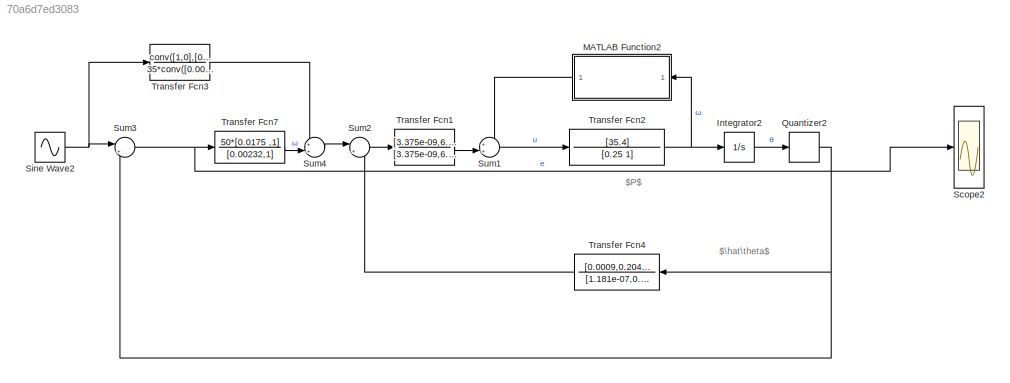
MODEL slx_70a6d7ed3083
KIND model
CONFIG AbsTol = auto
CONFIG EnableMultiTasking = off
CONFIG FixedStep = auto
CONFIG MaxStep = auto
CONFIG MinStep = auto
CONFIG RelTol = 1e-3
CONFIG SampleTimeConstraint = Unconstrained
CONFIG Solver = VariableStepAuto
CONFIG SolverName = VariableStepAuto
CONFIG StartTime = 0.0
CONFIG StopTime = 1
BLOCK [Integrator] Integrator2
  Ports = [1, 1]
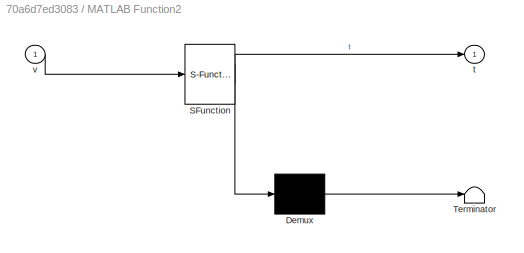
BLOCK [SubSystem] MATLAB Function2
  ErrorFcn = Stateflow.Translate.translate
  PermitHierarchicalResolution = ExplicitOnly
  Ports = [1, 1]
  RequestExecContextInheritance = off
  SFBlockType = MATLAB Function
  TreatAsAtomicUnit = on
BLOCK [Demux] MATLAB Function2/ Demux 
  Outputs = 1
  Ports = [1, 1]
BLOCK [S-Function] MATLAB Function2/ SFunction 
  EnableBusSupport = on
  FunctionName = sf_sfun
  PortCounts = [1 2]
  Ports = [1, 2]
  SFcnIsStateOwnerBlock = off
  SFunctionDeploymentMode = off
  Tag = Stateflow S-Function untitled 1
BLOCK [Terminator] MATLAB Function2/ Terminator 
BLOCK [Outport] MATLAB Function2/t
  IconDisplay = Port number
BLOCK [Inport] MATLAB Function2/v
  IconDisplay = Port number
BLOCK [Quantizer] Quantizer2
  QuantizationInterval = 1/1800
BLOCK [Scope] Scope2
  Floating = off
  NumInputPorts = 3
  Ports = [3]
  ScopeSpecificationString = Simulink.scopes.TimeScopeBlockCfg('CurrentConfiguration', extmgr.ConfigurationSet(extmgr.Configuration('Core','General UI',true),extmgr.Configuration('Core','Source UI',true),extmgr.Configuration('Sources','WiredSimulink',true,'DataLoggingVariableName','dataset','DataLoggingSaveFormat','StructureWithTime'),extmgr.Configuration('Visuals','Time Domain',true,'SerializedDisplays',{struct('MinYLimReal'...<+1515ch>
BLOCK [Sin] Sine Wave2
  Amplitude = 0.5
  Frequency = 10*2*pi
  Ports = [0, 1]
  SampleTime = 0
BLOCK [Sum] Sum1
  IconShape = round
  InputSameDT = off
  Inputs = ++|
  OutDataTypeStr = Inherit: Inherit via internal rule
  Ports = [2, 1]
  SaturateOnIntegerOverflow = off
BLOCK [Sum] Sum2
  IconShape = round
  InputSameDT = off
  Inputs = |+-
  OutDataTypeStr = Inherit: Inherit via internal rule
  Ports = [2, 1]
  SaturateOnIntegerOverflow = off
BLOCK [Sum] Sum3
  IconShape = round
  InputSameDT = off
  Inputs = |+-
  OutDataTypeStr = Inherit: Inherit via internal rule
  Ports = [2, 1]
  SaturateOnIntegerOverflow = off
BLOCK [Sum] Sum4
  IconShape = round
  InputSameDT = off
  Inputs = ++|
  OutDataTypeStr = Inherit: Inherit via internal rule
  Ports = [2, 1]
  SaturateOnIntegerOverflow = off
BLOCK [TransferFcn] Transfer Fcn1
  Denominator = [3.375e-09,6.75e-06,0,0]
  Numerator = [3.375e-09,6.75e-06,0.0045,1]
BLOCK [TransferFcn] Transfer Fcn2
  Denominator = [0.25 1]
  Numerator = [35.4]
BLOCK [TransferFcn] Transfer Fcn3
  Denominator = 35*conv([0.001 1],[0.001 1])
  Numerator = conv([1,0],[0.2 1])
BLOCK [TransferFcn] Transfer Fcn4
  Denominator = [1.181e-07,0.0002362,0.1575,35]
  Numerator = [0.0009,0.2045,1,0]
BLOCK [TransferFcn] Transfer Fcn7
  Denominator = [0.00232,1]
  Numerator = 50*[0.0175 ,1]
ANNOTATION (root): $P$
ANNOTATION (root): $\hat\theta$
LINE Integrator2:1 -> Quantizer2:1
LINE MATLAB Function2:1 -> Sum1:1
NET Quantizer2:1 -> Sum3:2, Transfer Fcn4:1
NET Sine Wave2:1 -> Sum3:1, Transfer Fcn3:1
LINE Sum1:1 -> Transfer Fcn2:1
LINE Sum2:1 -> Transfer Fcn1:1
NET Sum3:1 -> Scope2:2, Transfer Fcn7:1
LINE Sum4:1 -> Sum2:1
LINE Transfer Fcn1:1 -> Sum1:2
NET Transfer Fcn2:1 -> Integrator2:1, MATLAB Function2:1
LINE Transfer Fcn3:1 -> Sum4:1
LINE Transfer Fcn4:1 -> Sum2:2
LINE Transfer Fcn7:1 -> Sum4:2
note: NET lines group one-source signal fan-out (src -> all destinations, sorted); 1:1 wires keep LINE
CHART MATLAB Function2 states=1 transitions=1
  STATE_LABEL 'eML_blk_kernel()'
  STATE_LABEL 'SCRIPT:\nfunction t = fcn(v)\nt = 0.8*v + (1 + 9*exp(-2.2*abs(v)))*sign(v);\nend\n'
